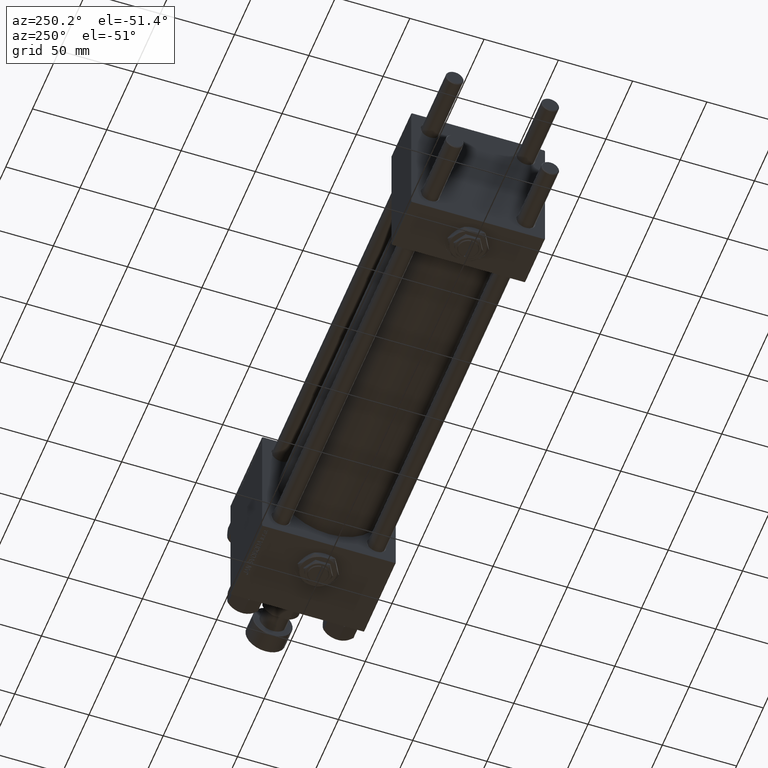
[diagram: clean part render]
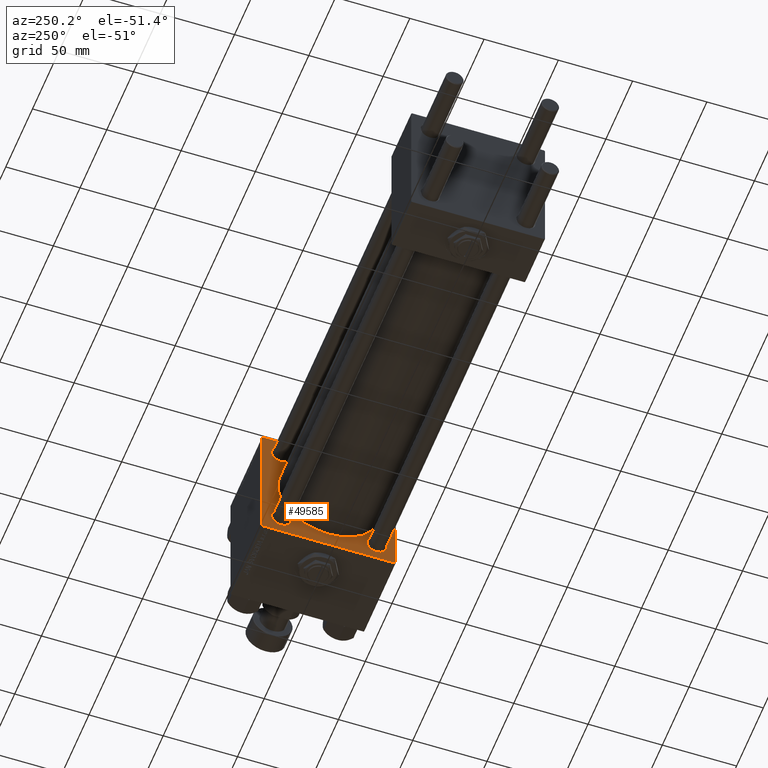
[diagram: same view with one face highlighted and labeled with its STEP entity id]
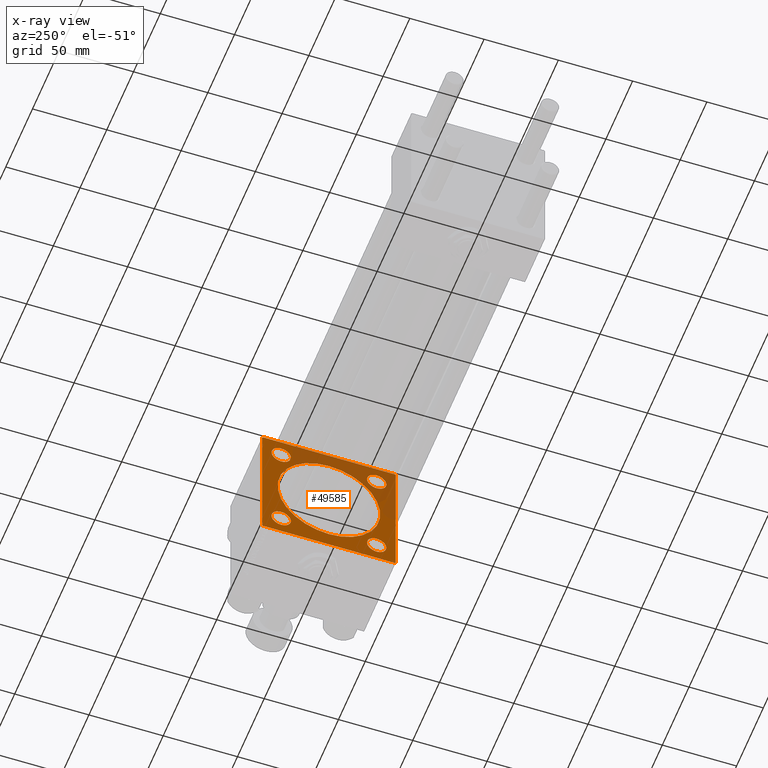
[diagram: x-ray of the same camera — body ghosted, the highlighted face saturated]
A machine part, auxiliary view. The second image highlights one B-rep face of the part: STEP entity #49585.
The next image is the same camera in x-ray: the body ghosted, the highlighted face saturated — about 32% of this face is hidden behind the body in this view.
In plain terms, the highlighted planar face has unit normal (-1, 0, 0).
Its self-contained STEP definition (entity closure, byte-faithful):
#593 = CARTESIAN_POINT ( 'NONE',  ( 278.9999999999999432, 32.14999999999999147, -32.15000000000000568 ) ) ;
#913 = CARTESIAN_POINT ( 'NONE',  ( 278.9999999999999432, -32.14999999999997726, -32.15000000000001279 ) ) ;
#1076 = VECTOR ( 'NONE', #45411, 999.9999999999998863 ) ;
#1344 = CARTESIAN_POINT ( 'NONE',  ( 278.9999999999999432, -32.14999999999997726, 32.15000000000001279 ) ) ;
#1606 = CARTESIAN_POINT ( 'NONE',  ( 278.9999999999999432, 45.00000000000001421, 45.00000000000000000 ) ) ;
#1750 = CARTESIAN_POINT ( 'NONE',  ( 278.9999999999999432, -44.74999999999968736, -44.75000000000031264 ) ) ;
#1857 = CARTESIAN_POINT ( 'NONE',  ( 278.9999999999999432, 44.50000000000001421, -45.00000000000000000 ) ) ;
#2010 = EDGE_CURVE ( 'NONE', #37610, #35966, #9886, .T. ) ;
#2296 = AXIS2_PLACEMENT_3D ( 'NONE', #913, #45611, #45879 ) ;
#3339 = CARTESIAN_POINT ( 'NONE',  ( 278.9999999999999432, 32.14999999999999147, 25.64999999999997016 ) ) ;
#3467 = FACE_BOUND ( 'NONE', #50007, .T. ) ;
#4030 = CIRCLE ( 'NONE', #9960, 34.49999999999999289 ) ;
#4157 = EDGE_CURVE ( 'NONE', #48437, #37778, #28567, .T. ) ;
#4367 = ORIENTED_EDGE ( 'NONE', *, *, #7263, .T. ) ;
#4653 = CIRCLE ( 'NONE', #13930, 34.49999999999999289 ) ;
#4815 = EDGE_CURVE ( 'NONE', #7259, #35768, #22014, .T. ) ;
#5049 = EDGE_CURVE ( 'NONE', #37778, #48437, #42109, .T. ) ;
#5090 = LINE ( 'NONE', #29936, #15831 ) ;
#5984 = ORIENTED_EDGE ( 'NONE', *, *, #5049, .T. ) ;
#6085 = ORIENTED_EDGE ( 'NONE', *, *, #34848, .T. ) ;
#6195 = EDGE_CURVE ( 'NONE', #7259, #50632, #5090, .T. ) ;
#7259 = VERTEX_POINT ( 'NONE', #41541 ) ;
#7263 = EDGE_CURVE ( 'NONE', #31438, #23307, #4030, .T. ) ;
#7380 = LINE ( 'NONE', #48107, #33921 ) ;
#8534 = EDGE_CURVE ( 'NONE', #50042, #44947, #26028, .T. ) ;
#9487 = VECTOR ( 'NONE', #29216, 1000.000000000000000 ) ;
#9643 = CARTESIAN_POINT ( 'NONE',  ( 278.9999999999999432, -44.99999999999999289, -44.49999999999997158 ) ) ;
#9882 = VECTOR ( 'NONE', #41889, 1000.000000000000000 ) ;
#9886 = CIRCLE ( 'NONE', #2296, 6.500000000000033751 ) ;
#9960 = AXIS2_PLACEMENT_3D ( 'NONE', #49982, #17447, #45762 ) ;
#10392 = CARTESIAN_POINT ( 'NONE',  ( 278.9999999999999432, -44.75000000000249401, 44.74999999999752021 ) ) ;
#10489 = CIRCLE ( 'NONE', #40067, 6.500000000000033751 ) ;
#10681 = FACE_BOUND ( 'NONE', #35377, .T. ) ;
#11229 = AXIS2_PLACEMENT_3D ( 'NONE', #40205, #45226, #44439 ) ;
#11662 = AXIS2_PLACEMENT_3D ( 'NONE', #1344, #17469, #49485 ) ;
#11669 = PLANE ( 'NONE',  #26713 ) ;
#12185 = DIRECTION ( 'NONE',  ( -1.000000000000000000, 0.000000000000000000, -0.000000000000000000 ) ) ;
#12271 = CARTESIAN_POINT ( 'NONE',  ( 278.9999999999999432, 0.000000000000000000, 0.000000000000000000 ) ) ;
#12798 = DIRECTION ( 'NONE',  ( 1.000000000000000000, 0.000000000000000000, 0.000000000000000000 ) ) ;
#13381 = ORIENTED_EDGE ( 'NONE', *, *, #23069, .T. ) ;
#13496 = CIRCLE ( 'NONE', #36295, 6.500000000000033751 ) ;
#13930 = AXIS2_PLACEMENT_3D ( 'NONE', #12271, #12798, #29190 ) ;
#14734 = CARTESIAN_POINT ( 'NONE',  ( 278.9999999999999432, 44.74999999999997158, 44.74999999999997158 ) ) ;
#15831 = VECTOR ( 'NONE', #25956, 1000.000000000000000 ) ;
#16276 = CIRCLE ( 'NONE', #11229, 6.500000000000033751 ) ;
#16713 = DIRECTION ( 'NONE',  ( 1.000000000000000000, 0.000000000000000000, 0.000000000000000000 ) ) ;
#17159 = ORIENTED_EDGE ( 'NONE', *, *, #39508, .T. ) ;
#17447 = DIRECTION ( 'NONE',  ( 1.000000000000000000, 0.000000000000000000, 0.000000000000000000 ) ) ;
#17469 = DIRECTION ( 'NONE',  ( 1.000000000000000000, 0.000000000000000000, 0.000000000000000000 ) ) ;
#18350 = FACE_BOUND ( 'NONE', #25221, .T. ) ;
#18406 = ORIENTED_EDGE ( 'NONE', *, *, #22521, .T. ) ;
#18491 = CARTESIAN_POINT ( 'NONE',  ( 278.9999999999999432, 32.14999999999999147, -32.15000000000000568 ) ) ;
#19491 = EDGE_CURVE ( 'NONE', #39890, #52042, #40463, .T. ) ;
#19633 = CARTESIAN_POINT ( 'NONE',  ( 278.9999999999999432, -32.14999999999997726, -25.64999999999997726 ) ) ;
#19741 = ORIENTED_EDGE ( 'NONE', *, *, #8534, .T. ) ;
#20069 = ORIENTED_EDGE ( 'NONE', *, *, #2010, .T. ) ;
#21263 = CARTESIAN_POINT ( 'NONE',  ( 278.9999999999999432, 45.00000000000001421, 45.00000000000000000 ) ) ;
#21608 = ORIENTED_EDGE ( 'NONE', *, *, #29415, .T. ) ;
#21736 = EDGE_LOOP ( 'NONE', ( #35571, #18406, #40899, #48510, #51619, #6085, #17159, #28704 ) ) ;
#21776 = LINE ( 'NONE', #21263, #9487 ) ;
#22014 = LINE ( 'NONE', #10392, #9882 ) ;
#22150 = CARTESIAN_POINT ( 'NONE',  ( 278.9999999999999432, -32.14999999999997726, -38.65000000000004832 ) ) ;
#22399 = LINE ( 'NONE', #14734, #47423 ) ;
#22521 = EDGE_CURVE ( 'NONE', #44491, #50632, #37478, .T. ) ;
#23069 = EDGE_CURVE ( 'NONE', #35966, #37610, #16276, .T. ) ;
#23307 = VERTEX_POINT ( 'NONE', #46770 ) ;
#23449 = ORIENTED_EDGE ( 'NONE', *, *, #24009, .T. ) ;
#23498 = CARTESIAN_POINT ( 'NONE',  ( 278.9999999999999432, 45.00000000000001421, 44.49999999999994316 ) ) ;
#23560 = CARTESIAN_POINT ( 'NONE',  ( 278.9999999999999432, 32.14999999999999147, 32.15000000000000568 ) ) ;
#23598 = CARTESIAN_POINT ( 'NONE',  ( 278.9999999999999432, -32.14999999999997726, 38.65000000000004832 ) ) ;
#23743 = VECTOR ( 'NONE', #48388, 1000.000000000000114 ) ;
#24009 = EDGE_CURVE ( 'NONE', #44947, #50042, #10489, .T. ) ;
#24859 = CARTESIAN_POINT ( 'NONE',  ( 278.9999999999999432, 0.000000000000000000, 0.000000000000000000 ) ) ;
#25221 = EDGE_LOOP ( 'NONE', ( #20069, #13381 ) ) ;
#25956 = DIRECTION ( 'NONE',  ( 0.000000000000000000, 7.709882115452478166E-17, -1.000000000000000000 ) ) ;
#26028 = CIRCLE ( 'NONE', #44627, 6.500000000000033751 ) ;
#26093 = AXIS2_PLACEMENT_3D ( 'NONE', #30066, #42252, #46207 ) ;
#26543 = FACE_BOUND ( 'NONE', #30165, .T. ) ;
#26713 = AXIS2_PLACEMENT_3D ( 'NONE', #24859, #12185, #43940 ) ;
#27814 = EDGE_CURVE ( 'NONE', #33115, #46246, #31160, .T. ) ;
#28567 = CIRCLE ( 'NONE', #11662, 6.500000000000033751 ) ;
#28704 = ORIENTED_EDGE ( 'NONE', *, *, #19491, .T. ) ;
#28855 = DIRECTION ( 'NONE',  ( 0.000000000000000000, 0.000000000000000000, 1.000000000000000000 ) ) ;
#28877 = DIRECTION ( 'NONE',  ( 1.000000000000000000, 0.000000000000000000, 0.000000000000000000 ) ) ;
#29190 = DIRECTION ( 'NONE',  ( 0.000000000000000000, 0.000000000000000000, -1.000000000000000000 ) ) ;
#29216 = DIRECTION ( 'NONE',  ( 0.000000000000000000, 0.000000000000000000, -1.000000000000000000 ) ) ;
#29415 = EDGE_CURVE ( 'NONE', #46246, #33115, #13496, .T. ) ;
#29640 = VERTEX_POINT ( 'NONE', #23498 ) ;
#29687 = VECTOR ( 'NONE', #48701, 1000.000000000000000 ) ;
#29936 = CARTESIAN_POINT ( 'NONE',  ( 278.9999999999999432, -45.00000000000000000, 44.99999999999998579 ) ) ;
#30066 = CARTESIAN_POINT ( 'NONE',  ( 278.9999999999999432, 32.14999999999999147, 32.15000000000000568 ) ) ;
#30165 = EDGE_LOOP ( 'NONE', ( #4367, #35890 ) ) ;
#30408 = DIRECTION ( 'NONE',  ( 0.000000000000000000, 0.000000000000000000, 1.000000000000000000 ) ) ;
#31160 = CIRCLE ( 'NONE', #26093, 6.500000000000033751 ) ;
#31438 = VERTEX_POINT ( 'NONE', #34049 ) ;
#32265 = CARTESIAN_POINT ( 'NONE',  ( 278.9999999999999432, 44.75000000000000000, -44.75000000000000000 ) ) ;
#32595 = CARTESIAN_POINT ( 'NONE',  ( 278.9999999999999432, -32.14999999999997726, 32.15000000000001279 ) ) ;
#32812 = AXIS2_PLACEMENT_3D ( 'NONE', #32595, #28877, #40002 ) ;
#32871 = DIRECTION ( 'NONE',  ( 0.000000000000000000, 0.000000000000000000, 1.000000000000000000 ) ) ;
#33115 = VERTEX_POINT ( 'NONE', #3339 ) ;
#33223 = CARTESIAN_POINT ( 'NONE',  ( 278.9999999999999432, -44.49999999999995737, -45.00000000000000000 ) ) ;
#33794 = EDGE_CURVE ( 'NONE', #52042, #44491, #7380, .T. ) ;
#33921 = VECTOR ( 'NONE', #47589, 1000.000000000000000 ) ;
#34049 = CARTESIAN_POINT ( 'NONE',  ( 278.9999999999999432, 0.000000000000000000, 34.49999999999999289 ) ) ;
#34483 = EDGE_CURVE ( 'NONE', #39502, #35768, #48964, .T. ) ;
#34848 = EDGE_CURVE ( 'NONE', #39502, #29640, #22399, .T. ) ;
#35377 = EDGE_LOOP ( 'NONE', ( #38107, #5984 ) ) ;
#35571 = ORIENTED_EDGE ( 'NONE', *, *, #33794, .T. ) ;
#35768 = VERTEX_POINT ( 'NONE', #50006 ) ;
#35890 = ORIENTED_EDGE ( 'NONE', *, *, #46551, .T. ) ;
#35966 = VERTEX_POINT ( 'NONE', #22150 ) ;
#36295 = AXIS2_PLACEMENT_3D ( 'NONE', #23560, #42076, #28855 ) ;
#37478 = LINE ( 'NONE', #1750, #1076 ) ;
#37610 = VERTEX_POINT ( 'NONE', #19633 ) ;
#37778 = VERTEX_POINT ( 'NONE', #50990 ) ;
#38107 = ORIENTED_EDGE ( 'NONE', *, *, #4157, .T. ) ;
#38728 = FACE_OUTER_BOUND ( 'NONE', #21736, .T. ) ;
#39274 = EDGE_LOOP ( 'NONE', ( #21608, #51777 ) ) ;
#39380 = CARTESIAN_POINT ( 'NONE',  ( 278.9999999999999432, 32.14999999999999147, -25.64999999999997016 ) ) ;
#39502 = VERTEX_POINT ( 'NONE', #41658 ) ;
#39508 = EDGE_CURVE ( 'NONE', #29640, #39890, #21776, .T. ) ;
#39890 = VERTEX_POINT ( 'NONE', #41595 ) ;
#40002 = DIRECTION ( 'NONE',  ( 0.000000000000000000, 0.000000000000000000, 1.000000000000000000 ) ) ;
#40067 = AXIS2_PLACEMENT_3D ( 'NONE', #593, #16713, #32871 ) ;
#40205 = CARTESIAN_POINT ( 'NONE',  ( 278.9999999999999432, -32.14999999999997726, -32.15000000000001279 ) ) ;
#40463 = LINE ( 'NONE', #32265, #23743 ) ;
#40899 = ORIENTED_EDGE ( 'NONE', *, *, #6195, .F. ) ;
#41541 = CARTESIAN_POINT ( 'NONE',  ( 278.9999999999999432, -45.00000000000000000, 44.49999999999998579 ) ) ;
#41595 = CARTESIAN_POINT ( 'NONE',  ( 278.9999999999999432, 45.00000000000001421, -44.49999999999997158 ) ) ;
#41658 = CARTESIAN_POINT ( 'NONE',  ( 278.9999999999999432, 44.49999999999995737, 45.00000000000000000 ) ) ;
#41693 = CARTESIAN_POINT ( 'NONE',  ( 278.9999999999999432, 32.14999999999999147, 38.65000000000004121 ) ) ;
#41889 = DIRECTION ( 'NONE',  ( -0.000000000000000000, 0.7071067811865081598, 0.7071067811865868746 ) ) ;
#42076 = DIRECTION ( 'NONE',  ( 1.000000000000000000, 0.000000000000000000, 0.000000000000000000 ) ) ;
#42109 = CIRCLE ( 'NONE', #32812, 6.500000000000033751 ) ;
#42252 = DIRECTION ( 'NONE',  ( 1.000000000000000000, 0.000000000000000000, 0.000000000000000000 ) ) ;
#42543 = DIRECTION ( 'NONE',  ( 0.000000000000000000, 0.7071067811865474617, -0.7071067811865474617 ) ) ;
#42589 = DIRECTION ( 'NONE',  ( 1.000000000000000000, 0.000000000000000000, 0.000000000000000000 ) ) ;
#42630 = CARTESIAN_POINT ( 'NONE',  ( 278.9999999999999432, 32.14999999999999147, -38.65000000000004121 ) ) ;
#43676 = FACE_BOUND ( 'NONE', #39274, .T. ) ;
#43940 = DIRECTION ( 'NONE',  ( -0.000000000000000000, 0.000000000000000000, 1.000000000000000000 ) ) ;
#44439 = DIRECTION ( 'NONE',  ( 0.000000000000000000, 0.000000000000000000, 1.000000000000000000 ) ) ;
#44491 = VERTEX_POINT ( 'NONE', #33223 ) ;
#44627 = AXIS2_PLACEMENT_3D ( 'NONE', #18491, #42589, #30408 ) ;
#44947 = VERTEX_POINT ( 'NONE', #39380 ) ;
#45226 = DIRECTION ( 'NONE',  ( 1.000000000000000000, 0.000000000000000000, 0.000000000000000000 ) ) ;
#45411 = DIRECTION ( 'NONE',  ( 0.000000000000000000, -0.7071067811865525687, 0.7071067811865425767 ) ) ;
#45611 = DIRECTION ( 'NONE',  ( 1.000000000000000000, 0.000000000000000000, 0.000000000000000000 ) ) ;
#45762 = DIRECTION ( 'NONE',  ( 0.000000000000000000, 0.000000000000000000, -1.000000000000000000 ) ) ;
#45879 = DIRECTION ( 'NONE',  ( 0.000000000000000000, 0.000000000000000000, 1.000000000000000000 ) ) ;
#46207 = DIRECTION ( 'NONE',  ( 0.000000000000000000, 0.000000000000000000, 1.000000000000000000 ) ) ;
#46246 = VERTEX_POINT ( 'NONE', #41693 ) ;
#46551 = EDGE_CURVE ( 'NONE', #23307, #31438, #4653, .T. ) ;
#46770 = CARTESIAN_POINT ( 'NONE',  ( 278.9999999999999432, 4.225031457058367344E-15, -34.49999999999999289 ) ) ;
#47423 = VECTOR ( 'NONE', #42543, 1000.000000000000114 ) ;
#47589 = DIRECTION ( 'NONE',  ( 0.000000000000000000, -1.000000000000000000, 0.000000000000000000 ) ) ;
#48107 = CARTESIAN_POINT ( 'NONE',  ( 278.9999999999999432, 45.00000000000001421, -45.00000000000000000 ) ) ;
#48388 = DIRECTION ( 'NONE',  ( -0.000000000000000000, -0.7071067811865474617, -0.7071067811865474617 ) ) ;
#48437 = VERTEX_POINT ( 'NONE', #23598 ) ;
#48510 = ORIENTED_EDGE ( 'NONE', *, *, #4815, .T. ) ;
#48701 = DIRECTION ( 'NONE',  ( 0.000000000000000000, -1.000000000000000000, -1.541976423090495140E-16 ) ) ;
#48964 = LINE ( 'NONE', #1606, #29687 ) ;
#49485 = DIRECTION ( 'NONE',  ( 0.000000000000000000, 0.000000000000000000, 1.000000000000000000 ) ) ;
#49585 = ADVANCED_FACE ( 'NONE', ( #10681, #43676, #3467, #18350, #26543, #38728 ), #11669, .T. ) ;
#49982 = CARTESIAN_POINT ( 'NONE',  ( 278.9999999999999432, 0.000000000000000000, 0.000000000000000000 ) ) ;
#50006 = CARTESIAN_POINT ( 'NONE',  ( 278.9999999999999432, -44.50000000000002842, 44.99999999999998579 ) ) ;
#50007 = EDGE_LOOP ( 'NONE', ( #23449, #19741 ) ) ;
#50042 = VERTEX_POINT ( 'NONE', #42630 ) ;
#50632 = VERTEX_POINT ( 'NONE', #9643 ) ;
#50990 = CARTESIAN_POINT ( 'NONE',  ( 278.9999999999999432, -32.14999999999997726, 25.64999999999997726 ) ) ;
#51619 = ORIENTED_EDGE ( 'NONE', *, *, #34483, .F. ) ;
#51777 = ORIENTED_EDGE ( 'NONE', *, *, #27814, .T. ) ;
#52042 = VERTEX_POINT ( 'NONE', #1857 ) ;